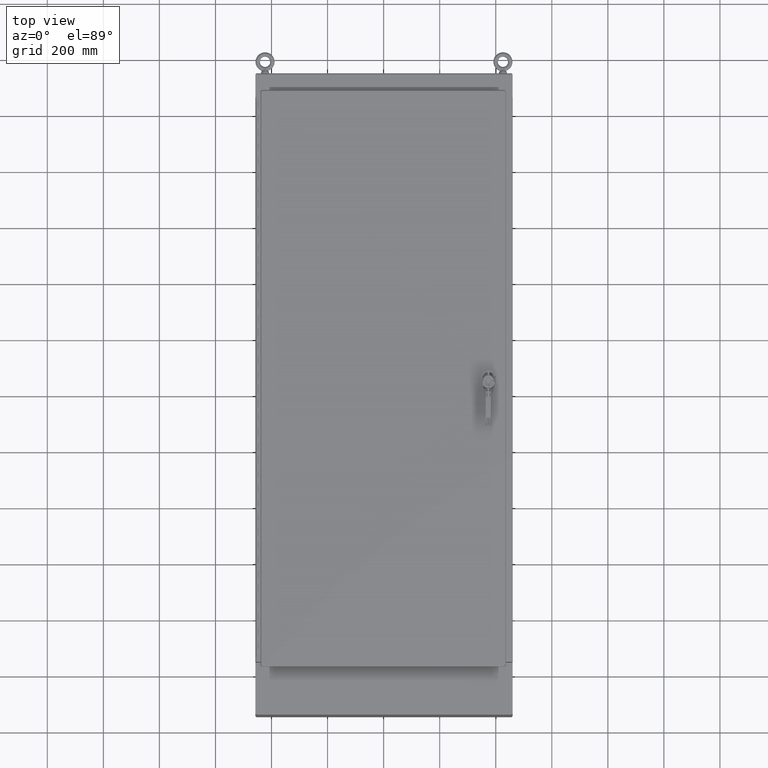
[diagram: clean part render]
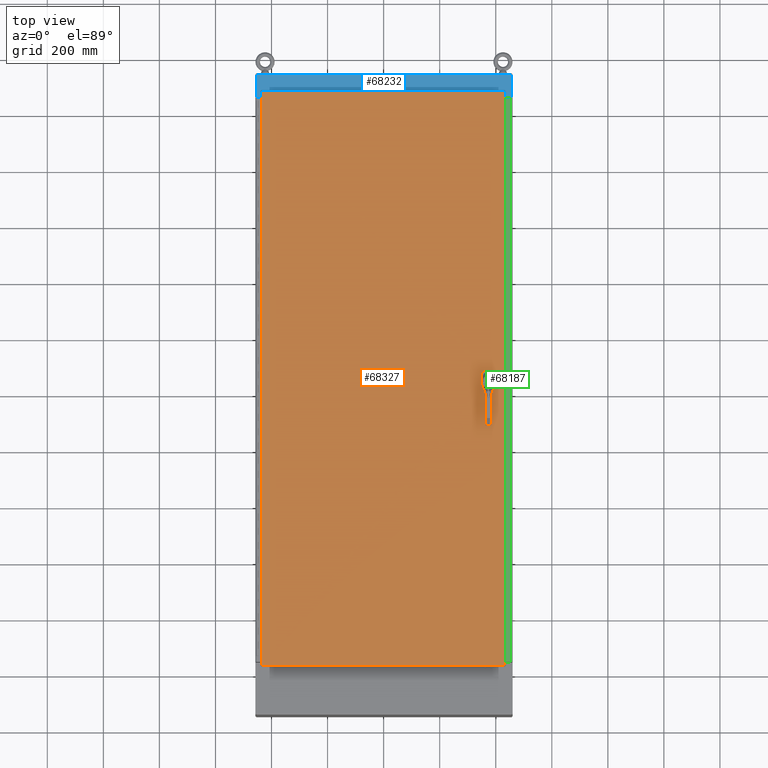
[diagram: same view with three faces highlighted in distinct colors, each labeled with its STEP entity id]
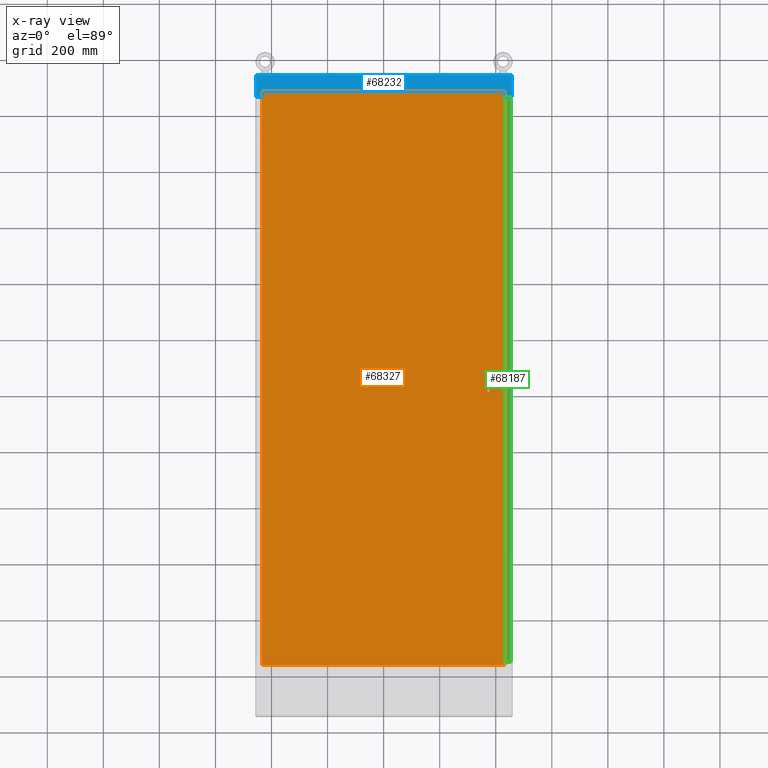
[diagram: x-ray of the same camera — body ghosted, the three highlighted faces saturated]
A machine part, top view with three faces highlighted in distinct colors.
The next image is the same camera in x-ray (body ghosted, the three faces saturated) — at least one of them is partly hidden behind the body in this view.
Their STEP definitions:

[orange] entity #68327 — the highlighted planar face has unit normal (-0, 0, 1).
#8943=FACE_BOUND('',#13548,.T.);
#8944=FACE_BOUND('',#13549,.T.);
#8945=FACE_BOUND('',#13550,.T.);
#8946=FACE_BOUND('',#13551,.T.);
#9343=PLANE('',#72218);
#10569=FACE_OUTER_BOUND('',#13547,.T.);
#13547=EDGE_LOOP('',(#51369,#51370,#51371,#51372));
#13548=EDGE_LOOP('',(#51373));
#13549=EDGE_LOOP('',(#51374));
#13550=EDGE_LOOP('',(#51375));
#13551=EDGE_LOOP('',(#51376,#51377,#51378,#51379,#51380,#51381,#51382,#51383));
#16533=CIRCLE('',#72162,0.14);
#16535=CIRCLE('',#72165,0.14);
#16537=CIRCLE('',#72168,0.14);
#16539=CIRCLE('',#72172,0.453000000000064);
#16541=CIRCLE('',#72176,0.453000000000064);
#16543=CIRCLE('',#72180,0.453000000000078);
#16545=CIRCLE('',#72184,0.453000000000064);
#20307=LINE('',#96993,#25554);
#20312=LINE('',#97007,#25559);
#20316=LINE('',#97019,#25563);
#20320=LINE('',#97031,#25567);
#20340=LINE('',#97086,#25587);
#20352=LINE('',#97200,#25599);
#20367=LINE('',#97320,#25614);
#20382=LINE('',#97439,#25629);
#25554=VECTOR('',#79024,0.393700787401575);
#25559=VECTOR('',#79037,0.393700787401575);
#25563=VECTOR('',#79049,0.393700787401575);
#25567=VECTOR('',#79061,0.393700787401575);
#25587=VECTOR('',#79099,0.393700787401575);
#25599=VECTOR('',#79123,0.393700787401575);
#25614=VECTOR('',#79152,0.393700787401575);
#25629=VECTOR('',#79181,0.393700787401575);
#30716=VERTEX_POINT('',#96973);
#30718=VERTEX_POINT('',#96979);
#30720=VERTEX_POINT('',#96985);
#30722=VERTEX_POINT('',#96991);
#30723=VERTEX_POINT('',#96992);
#30726=VERTEX_POINT('',#97000);
#30728=VERTEX_POINT('',#97006);
#30730=VERTEX_POINT('',#97012);
#30732=VERTEX_POINT('',#97018);
#30734=VERTEX_POINT('',#97024);
#30736=VERTEX_POINT('',#97030);
#30751=VERTEX_POINT('',#97074);
#30752=VERTEX_POINT('',#97085);
#30760=VERTEX_POINT('',#97189);
#30770=VERTEX_POINT('',#97309);
#40103=EDGE_CURVE('',#30716,#30716,#16533,.T.);
#40106=EDGE_CURVE('',#30718,#30718,#16535,.T.);
#40109=EDGE_CURVE('',#30720,#30720,#16537,.T.);
#40112=EDGE_CURVE('',#30722,#30723,#20307,.T.);
#40116=EDGE_CURVE('',#30726,#30722,#16539,.T.);
#40119=EDGE_CURVE('',#30728,#30726,#20312,.T.);
#40122=EDGE_CURVE('',#30730,#30728,#16541,.T.);
#40125=EDGE_CURVE('',#30732,#30730,#20316,.T.);
#40128=EDGE_CURVE('',#30734,#30732,#16543,.T.);
#40131=EDGE_CURVE('',#30736,#30734,#20320,.T.);
#40134=EDGE_CURVE('',#30723,#30736,#16545,.T.);
#40154=EDGE_CURVE('',#30752,#30751,#20340,.T.);
#40170=EDGE_CURVE('',#30751,#30760,#20352,.T.);
#40189=EDGE_CURVE('',#30760,#30770,#20367,.T.);
#40208=EDGE_CURVE('',#30770,#30752,#20382,.T.);
#51369=ORIENTED_EDGE('',*,*,#40154,.T.);
#51370=ORIENTED_EDGE('',*,*,#40170,.T.);
#51371=ORIENTED_EDGE('',*,*,#40189,.T.);
#51372=ORIENTED_EDGE('',*,*,#40208,.T.);
#51373=ORIENTED_EDGE('',*,*,#40103,.T.);
#51374=ORIENTED_EDGE('',*,*,#40106,.T.);
#51375=ORIENTED_EDGE('',*,*,#40109,.T.);
#51376=ORIENTED_EDGE('',*,*,#40112,.T.);
#51377=ORIENTED_EDGE('',*,*,#40134,.T.);
#51378=ORIENTED_EDGE('',*,*,#40131,.T.);
#51379=ORIENTED_EDGE('',*,*,#40128,.T.);
#51380=ORIENTED_EDGE('',*,*,#40125,.T.);
#51381=ORIENTED_EDGE('',*,*,#40122,.T.);
#51382=ORIENTED_EDGE('',*,*,#40119,.T.);
#51383=ORIENTED_EDGE('',*,*,#40116,.T.);
#68327=ADVANCED_FACE('',(#10569,#8943,#8944,#8945,#8946),#9343,.T.);
#72162=AXIS2_PLACEMENT_3D('',#96974,#79003,#79004);
#72165=AXIS2_PLACEMENT_3D('',#96980,#79010,#79011);
#72168=AXIS2_PLACEMENT_3D('',#96986,#79017,#79018);
#72172=AXIS2_PLACEMENT_3D('',#97001,#79030,#79031);
#72176=AXIS2_PLACEMENT_3D('',#97013,#79042,#79043);
#72180=AXIS2_PLACEMENT_3D('',#97025,#79054,#79055);
#72184=AXIS2_PLACEMENT_3D('',#97036,#79066,#79067);
#72218=AXIS2_PLACEMENT_3D('',#97542,#79206,#79207);
#79003=DIRECTION('center_axis',(0.,0.,-1.));
#79004=DIRECTION('ref_axis',(-1.,0.,0.));
#79010=DIRECTION('center_axis',(0.,0.,-1.));
#79011=DIRECTION('ref_axis',(-1.,0.,0.));
#79017=DIRECTION('center_axis',(0.,0.,-1.));
#79018=DIRECTION('ref_axis',(-1.,0.,0.));
#79024=DIRECTION('',(0.,-1.,0.));
#79030=DIRECTION('center_axis',(0.,0.,-1.));
#79031=DIRECTION('ref_axis',(0.883002207505394,0.469368833158531,0.));
#79037=DIRECTION('',(1.,2.04909999665104E-16,0.));
#79042=DIRECTION('center_axis',(0.,0.,-1.));
#79043=DIRECTION('ref_axis',(-0.47088532778628,0.882194427592698,0.));
#79049=DIRECTION('',(-6.57830554003724E-15,1.,0.));
#79054=DIRECTION('center_axis',(0.,0.,-1.));
#79055=DIRECTION('ref_axis',(-0.883002207505386,-0.469368833158547,0.));
#79061=DIRECTION('',(-1.,-4.12482340491179E-16,0.));
#79066=DIRECTION('center_axis',(0.,0.,-1.));
#79067=DIRECTION('ref_axis',(0.467846028240098,-0.883809987418091,0.));
#79099=DIRECTION('',(-6.94108231057126E-17,-1.,0.));
#79123=DIRECTION('',(1.,-3.28701291993679E-16,0.));
#79152=DIRECTION('',(1.38821646211425E-16,1.,0.));
#79181=DIRECTION('',(-1.,3.28701291993679E-16,0.));
#79206=DIRECTION('center_axis',(0.,0.,1.));
#79207=DIRECTION('ref_axis',(1.,0.,0.));
#96973=CARTESIAN_POINT('',(14.92125,0.509691890970341,0.104));
#96974=CARTESIAN_POINT('Origin',(14.78125,0.509691890970341,0.104));
#96979=CARTESIAN_POINT('',(14.92125,-1.75330810902139,0.104));
#96980=CARTESIAN_POINT('Origin',(14.78125,-1.75330810902139,0.104));
#96985=CARTESIAN_POINT('',(14.92125,-1.26130810902302,0.104));
#96986=CARTESIAN_POINT('Origin',(14.78125,-1.26130810902302,0.104));
#96991=CARTESIAN_POINT('',(15.18125,-0.162375918579166,0.104));
#96992=CARTESIAN_POINT('',(15.18125,-0.587624081420854,0.104));
#96993=CARTESIAN_POINT('',(15.18125,-0.0811879592895856,0.104));
#97000=CARTESIAN_POINT('',(14.9945610534872,0.024634075699538,0.104));
#97001=CARTESIAN_POINT('Origin',(14.78125,-0.37500000000001,0.104));
#97006=CARTESIAN_POINT('',(14.5679389465128,0.024634075699538,0.104));
#97007=CARTESIAN_POINT('',(7.28396947325639,0.0246340756995365,0.104));
#97012=CARTESIAN_POINT('',(14.38125,-0.162375918579164,0.104));
#97013=CARTESIAN_POINT('Origin',(14.78125,-0.37500000000001,0.104));
#97018=CARTESIAN_POINT('',(14.38125,-0.587624081420862,0.104));
#97019=CARTESIAN_POINT('',(14.38125,-0.293812040710386,0.104));
#97024=CARTESIAN_POINT('',(14.5693157492072,-0.775365924300462,0.104));
#97025=CARTESIAN_POINT('Origin',(14.78125,-0.37500000000001,0.104));
#97030=CARTESIAN_POINT('',(14.9931842507928,-0.775365924300462,0.104));
#97031=CARTESIAN_POINT('',(7.49659212539639,-0.775365924300465,0.104));
#97036=CARTESIAN_POINT('Origin',(14.78125,-0.37500000000001,0.104));
#97074=CARTESIAN_POINT('',(-17.021,-40.30225,0.104));
#97085=CARTESIAN_POINT('',(-17.021,40.30225,0.104));
#97086=CARTESIAN_POINT('',(-17.021,20.151125,0.104));
#97189=CARTESIAN_POINT('',(17.021,-40.30225,0.104));
#97200=CARTESIAN_POINT('',(-8.51050000000001,-40.30225,0.104));
#97309=CARTESIAN_POINT('',(17.021,40.30225,0.104));
#97320=CARTESIAN_POINT('',(17.021,-20.151125,0.104));
#97439=CARTESIAN_POINT('',(8.51050000000001,40.30225,0.104));
#97542=CARTESIAN_POINT('Origin',(2.09805925913415E-15,-4.98200867503837E-15,
0.104));

[blue] entity #68232 — the highlighted planar face has unit normal (-0, -0, 1).
#9277=PLANE('',#72099);
#10474=FACE_OUTER_BOUND('',#13448,.T.);
#13448=EDGE_LOOP('',(#50945,#50946,#50947,#50948,#50949,#50950,#50951,#50952,
#50953,#50954,#50955,#50956));
#20165=LINE('',#96626,#25412);
#20167=LINE('',#96632,#25414);
#20180=LINE('',#96671,#25427);
#20214=LINE('',#96756,#25461);
#20216=LINE('',#96760,#25463);
#20217=LINE('',#96763,#25464);
#20219=LINE('',#96766,#25466);
#20220=LINE('',#96769,#25467);
#20222=LINE('',#96772,#25469);
#20223=LINE('',#96775,#25470);
#20224=LINE('',#96777,#25471);
#20225=LINE('',#96778,#25472);
#25412=VECTOR('',#78648,0.393700787401575);
#25414=VECTOR('',#78652,0.393700787401575);
#25427=VECTOR('',#78683,0.393700787401575);
#25461=VECTOR('',#78777,0.393700787401575);
#25463=VECTOR('',#78781,0.393700787401575);
#25464=VECTOR('',#78784,0.393700787401575);
#25466=VECTOR('',#78788,0.393700787401575);
#25467=VECTOR('',#78791,0.393700787401575);
#25469=VECTOR('',#78795,0.393700787401575);
#25470=VECTOR('',#78798,0.393700787401575);
#25471=VECTOR('',#78799,0.393700787401575);
#25472=VECTOR('',#78800,0.179624999999999);
#30613=VERTEX_POINT('',#96620);
#30615=VERTEX_POINT('',#96624);
#30616=VERTEX_POINT('',#96628);
#30618=VERTEX_POINT('',#96631);
#30624=VERTEX_POINT('',#96644);
#30632=VERTEX_POINT('',#96661);
#30635=VERTEX_POINT('',#96669);
#30657=VERTEX_POINT('',#96758);
#30658=VERTEX_POINT('',#96762);
#30659=VERTEX_POINT('',#96768);
#30660=VERTEX_POINT('',#96774);
#30661=VERTEX_POINT('',#96776);
#39932=EDGE_CURVE('',#30613,#30615,#20165,.T.);
#39934=EDGE_CURVE('',#30618,#30616,#20167,.T.);
#39953=EDGE_CURVE('',#30616,#30635,#20180,.T.);
#39997=EDGE_CURVE('',#30632,#30624,#20214,.T.);
#39999=EDGE_CURVE('',#30624,#30657,#20216,.T.);
#40000=EDGE_CURVE('',#30658,#30613,#20217,.T.);
#40002=EDGE_CURVE('',#30657,#30658,#20219,.T.);
#40003=EDGE_CURVE('',#30659,#30632,#20220,.T.);
#40005=EDGE_CURVE('',#30635,#30659,#20222,.T.);
#40006=EDGE_CURVE('',#30660,#30615,#20223,.T.);
#40007=EDGE_CURVE('',#30660,#30661,#20224,.T.);
#40008=EDGE_CURVE('',#30618,#30661,#20225,.T.);
#50945=ORIENTED_EDGE('',*,*,#39932,.T.);
#50946=ORIENTED_EDGE('',*,*,#40006,.F.);
#50947=ORIENTED_EDGE('',*,*,#40007,.T.);
#50948=ORIENTED_EDGE('',*,*,#40008,.F.);
#50949=ORIENTED_EDGE('',*,*,#39934,.T.);
#50950=ORIENTED_EDGE('',*,*,#39953,.T.);
#50951=ORIENTED_EDGE('',*,*,#40005,.T.);
#50952=ORIENTED_EDGE('',*,*,#40003,.T.);
#50953=ORIENTED_EDGE('',*,*,#39997,.T.);
#50954=ORIENTED_EDGE('',*,*,#39999,.T.);
#50955=ORIENTED_EDGE('',*,*,#40002,.T.);
#50956=ORIENTED_EDGE('',*,*,#40000,.T.);
#68232=ADVANCED_FACE('',(#10474),#9277,.T.);
#72099=AXIS2_PLACEMENT_3D('',#96773,#78796,#78797);
#78648=DIRECTION('',(1.,-4.67339864028056E-16,2.75119231462648E-16));
#78652=DIRECTION('',(1.,-4.67339864028056E-16,-4.66415019167958E-35));
#78683=DIRECTION('',(0.,-1.72379377816535E-15,1.));
#78777=DIRECTION('',(1.,-4.67339864028056E-16,4.19087991837034E-17));
#78781=DIRECTION('',(0.,-1.72379377816535E-15,1.));
#78784=DIRECTION('',(0.,1.72379377816535E-15,-1.));
#78788=DIRECTION('',(1.,-4.67339864028056E-16,-1.57132488603615E-30));
#78791=DIRECTION('',(0.,1.72379377816535E-15,-1.));
#78795=DIRECTION('',(1.,-4.67339864028056E-16,-1.57132488603615E-30));
#78796=DIRECTION('center_axis',(-4.67339864028056E-16,-1.,-1.72379377816535E-15));
#78797=DIRECTION('ref_axis',(1.,-4.67339864028057E-16,3.50484604917029E-16));
#78798=DIRECTION('',(5.91645678915759E-31,1.71512449944288E-15,-1.));
#78799=DIRECTION('',(-1.,4.67339864028056E-16,2.00421317790069E-31));
#78800=DIRECTION('',(-6.15811506551547E-31,-1.77635683940025E-15,1.));
#96620=CARTESIAN_POINT('',(16.6877,-10.0105,-3.219));
#96624=CARTESIAN_POINT('',(17.9585,-10.0105,-3.219));
#96626=CARTESIAN_POINT('',(8.34375,-10.0105,-3.219));
#96628=CARTESIAN_POINT('',(-16.6877,-10.0105,-3.219));
#96631=CARTESIAN_POINT('',(-17.9585,-10.0105,-3.219));
#96632=CARTESIAN_POINT('',(-8.97925,-10.0105,-3.219));
#96644=CARTESIAN_POINT('',(16.6875,-10.0105,-3.07325));
#96661=CARTESIAN_POINT('',(-16.6875,-10.0105,-3.07325));
#96669=CARTESIAN_POINT('',(-16.6877,-10.0105,-3.07305));
#96671=CARTESIAN_POINT('',(-16.6877,-10.0105,-2.31889267744987));
#96756=CARTESIAN_POINT('',(8.34375,-10.0105,-3.07325));
#96758=CARTESIAN_POINT('',(16.6875,-10.0105,-3.07305));
#96760=CARTESIAN_POINT('',(16.6875,-10.0105,-2.31889267744987));
#96762=CARTESIAN_POINT('',(16.6877,-10.0105,-3.07305));
#96763=CARTESIAN_POINT('',(16.6877,-10.0105,-2.41786767744987));
#96766=CARTESIAN_POINT('',(8.34385,-10.0105,-3.07305));
#96768=CARTESIAN_POINT('',(-16.6875,-10.0105,-3.07305));
#96769=CARTESIAN_POINT('',(-16.6875,-10.0105,-2.41786767744987));
#96772=CARTESIAN_POINT('',(-8.34375,-10.0105,-3.07305));
#96773=CARTESIAN_POINT('Origin',(7.74539600935803E-16,-10.0105,-1.56473535489973));
#96774=CARTESIAN_POINT('',(17.9585,-10.0105,-0.140624999999999));
#96775=CARTESIAN_POINT('',(17.9585,-10.0105,-0.140624999999999));
#96776=CARTESIAN_POINT('',(-17.9585,-10.0105,-0.140624999999999));
#96777=CARTESIAN_POINT('',(1.73930952906398E-15,-10.0105,-0.140625000000001));
#96778=CARTESIAN_POINT('',(-17.9585,-10.0105,0.423683580401065));

[green] entity #68187 — the highlighted planar face has unit normal (0, 0, -1).
#9239=PLANE('',#72037);
#10429=FACE_OUTER_BOUND('',#13403,.T.);
#13403=EDGE_LOOP('',(#50733,#50734,#50735,#50736));
#20117=LINE('',#96519,#25364);
#20120=LINE('',#96525,#25367);
#20123=LINE('',#96532,#25370);
#20125=LINE('',#96539,#25372);
#25364=VECTOR('',#78546,0.393700787401575);
#25367=VECTOR('',#78551,0.393700787401575);
#25370=VECTOR('',#78558,0.393700787401575);
#25372=VECTOR('',#78566,0.179624999999999);
#30581=VERTEX_POINT('',#96504);
#30582=VERTEX_POINT('',#96508);
#30585=VERTEX_POINT('',#96523);
#30587=VERTEX_POINT('',#96531);
#39880=EDGE_CURVE('',#30581,#30582,#20117,.T.);
#39883=EDGE_CURVE('',#30585,#30582,#20120,.T.);
#39886=EDGE_CURVE('',#30585,#30587,#20123,.T.);
#39890=EDGE_CURVE('',#30581,#30587,#20125,.T.);
#50733=ORIENTED_EDGE('',*,*,#39880,.T.);
#50734=ORIENTED_EDGE('',*,*,#39883,.F.);
#50735=ORIENTED_EDGE('',*,*,#39886,.T.);
#50736=ORIENTED_EDGE('',*,*,#39890,.F.);
#68187=ADVANCED_FACE('',(#10429),#9239,.F.);
#72037=AXIS2_PLACEMENT_3D('',#96549,#78578,#78579);
#78546=DIRECTION('',(-2.32570185825705E-16,-1.,-2.24674062395469E-16));
#78551=DIRECTION('',(-8.82055185704388E-15,1.92284845647622E-30,1.));
#78558=DIRECTION('',(2.32570185825707E-16,1.,1.30480932484739E-31));
#78566=DIRECTION('',(1.09497182257616E-15,2.17777354878226E-16,-1.));
#78578=DIRECTION('center_axis',(-1.,2.32570185825707E-16,-8.16263876578937E-15));
#78579=DIRECTION('ref_axis',(-8.16263876578937E-15,2.17777354878228E-16,
1.));
#96504=CARTESIAN_POINT('',(10.0625,41.6875,1.17725));
#96508=CARTESIAN_POINT('',(10.0625,-37.6875,1.17724999999998));
#96519=CARTESIAN_POINT('',(10.0625,-17.84375,1.17724999999999));
#96523=CARTESIAN_POINT('',(10.0625,-37.6875,0.244625000000001));
#96525=CARTESIAN_POINT('',(10.0625,-37.6875,0.244624999999984));
#96531=CARTESIAN_POINT('',(10.0625,41.6875,0.244625000000001));
#96532=CARTESIAN_POINT('',(10.0625,2.,0.244625000000001));
#96539=CARTESIAN_POINT('',(10.0625,41.6875,-0.319683580401064));
#96549=CARTESIAN_POINT('Origin',(10.0625,2.,0.668735354899725));